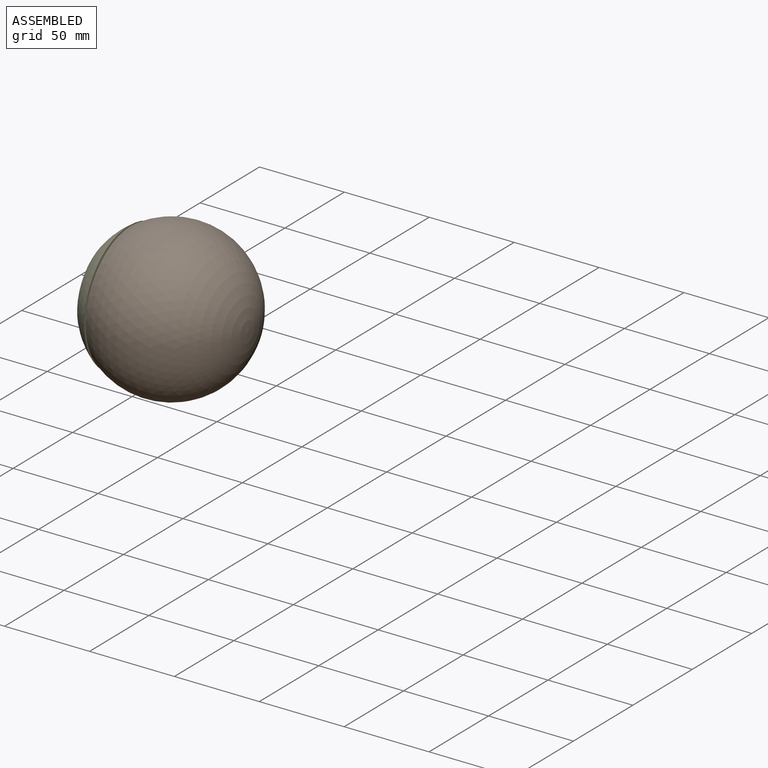
[diagram: assembled view]
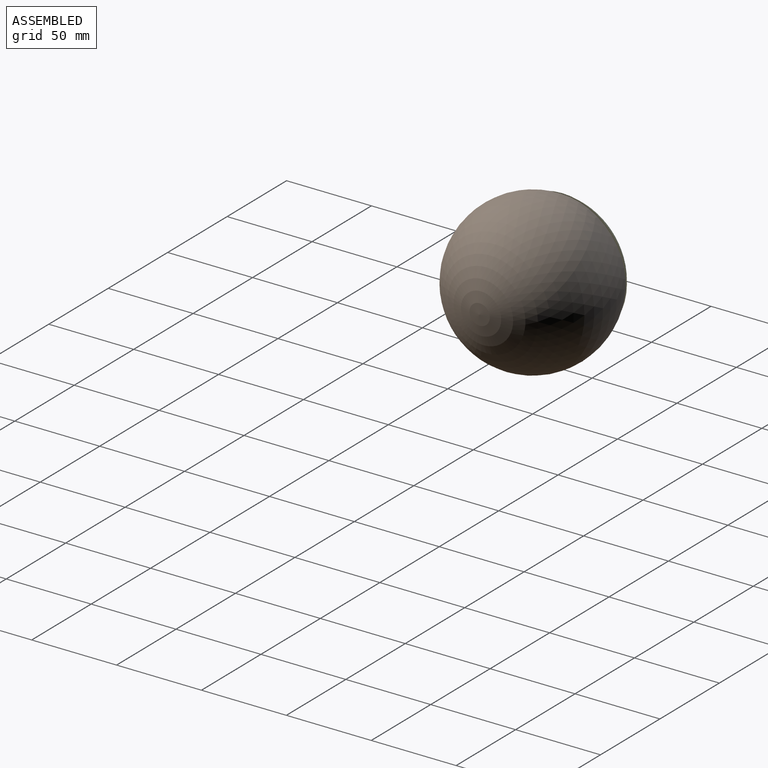
[diagram: assembled view, second angle]
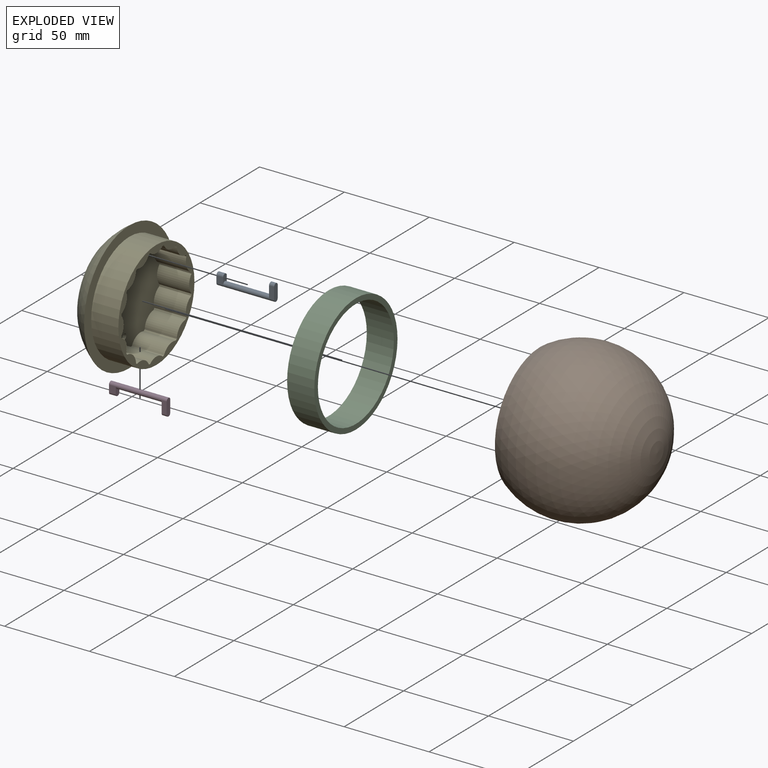
[diagram: exploded view]
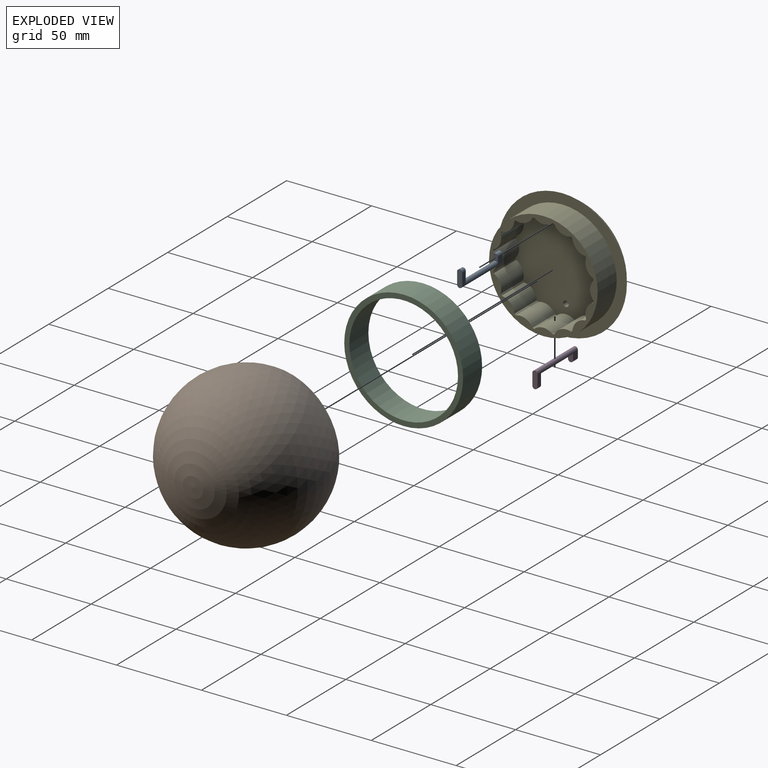
[diagram: exploded view, second angle]
ASSEMBLY  parts=5 mates=4
PART A: 11 faces, bbox 3x34x9.9 mm
  f0: plane 4x4mm, normal (-1,0,0), area 16mm2, adj f1,f3,f4,f5
  f1: cylinder r=1.5mm len=34mm, axis (0,1,0), area 287.5mm2, adj f0,f2,f4,f5,f6,f8,f9,f10
  f2: plane 4x4mm, normal (1,0,0), area 16mm2, adj f1,f3,f4,f5
  f3: cylinder r=1.5mm len=4mm, axis (0,1,0), area 18.8mm2, adj f0,f2,f4,f5
  f4: plane 7x3mm, normal (0,-1,0), area 19.1mm2, adj f0,f1,f2,f3
  f5: plane 5.5x3mm, normal (0,1,0), area 12mm2, adj f0,f1,f2,f3
  f6: plane 6.92x3mm, normal (-1,0,0), area 20.8mm2, adj f1,f7,f9,f10
  f7: cylinder r=1.5mm len=3mm, axis (0,-1,0), area 14.1mm2, adj f6,f8,f9,f10
  f8: plane 6.92x3mm, normal (1,0,0), area 20.8mm2, adj f1,f7,f9,f10
  f9: plane 9.92x3mm, normal (0,1,0), area 27.8mm2, adj f1,f6,f7,f8
  f10: plane 8.42x3mm, normal (0,-1,0), area 20.8mm2, adj f1,f6,f7,f8
PART B: 36 faces, bbox 69x90x90 mm
  f0: cylinder r=25mm len=49.4mm, axis (1,0,0), area 861.2mm2, adj f3,f6,f13,f15,f21,f23,f28,f31
  f1: cylinder r=25mm len=49.4mm, axis (1,0,0), area 861.2mm2, adj f2,f4,f6,f16,f18,f20,f29,f30
  f2: plane 41.75x11.18mm, normal (-1,0,0), area 102.6mm2, adj f1,f16,f17,f18
  f3: plane 41.75x11.18mm, normal (-1,0,0), area 102.6mm2, adj f0,f12,f13,f23
  f4: cylinder r=2.5mm len=6mm, axis (-1,0,0), area 74.1mm2, adj f1,f5,f30,f35
  f5: cylinder r=25.8mm len=9.62mm, axis (-1,0,0), area 65.8mm2, adj f4,f16,f30,f35
  f6: torus R=28mm, axis (1,0,0), area 772.5mm2, adj f0,f1,f7,f27
  f7: plane 70x70mm, normal (1,0,0), area 1385.4mm2, adj f6,f8
  f8: torus R=35mm, axis (1,0,0), area 1092.9mm2, adj f7,f9
  f9: cylinder r=38mm len=76mm, axis (1,0,0), area 2427.5mm2, adj f8,f10
  f10: torus R=38.2mm, axis (1,0,0), area 129.4mm2, adj f9,f11
  f11: sphere r=42.5mm, area 16223.2mm2, adj f10
  f12: cylinder r=27.25mm len=41.75mm, axis (-1,0,0), area 761mm2, adj f3,f13,f23,f27
  f13: plane 16x1.72mm, normal (0,-0.77,0.64), area 31.2mm2, adj f0,f3,f12,f14,f27,f31,f34
  f14: cylinder r=25.8mm len=9.62mm, axis (-1,0,0), area 65.8mm2, adj f13,f15,f31,f34
  f15: cylinder r=2.5mm len=6mm, axis (-1,0,0), area 74.1mm2, adj f0,f14,f31,f34
  f16: plane 16x1.72mm, normal (0,0.77,0.64), area 31.2mm2, adj f1,f2,f5,f17,f27,f30,f35
  f17: cylinder r=27.25mm len=41.75mm, axis (-1,0,0), area 761mm2, adj f2,f16,f18,f27
  f18: plane 16x1.72mm, normal (0,0.77,-0.64), area 31.2mm2, adj f1,f2,f17,f19,f27,f29,f33
  f19: cylinder r=25.8mm len=9.62mm, axis (-1,0,0), area 65.8mm2, adj f18,f20,f29,f33
  f20: cylinder r=2.5mm len=6mm, axis (-1,0,0), area 74.1mm2, adj f1,f19,f29,f33
  f21: cylinder r=2.5mm len=6mm, axis (-1,0,0), area 74.1mm2, adj f0,f22,f28,f32
  f22: cylinder r=25.8mm len=9.62mm, axis (-1,0,0), area 65.8mm2, adj f21,f23,f28,f32
  f23: plane 16x1.72mm, normal (0,-0.77,-0.64), area 31.2mm2, adj f0,f3,f12,f22,f27,f28,f32
  f24: sphere r=45mm, area 19509.3mm2, adj f25
  f25: plane 76.13x76.13mm, normal (-1,0,0), area 703.7mm2, adj f24,f26
  f26: cylinder r=35mm len=70mm, axis (1,0,0), area 3518.6mm2, adj f25,f27
  f27: plane 70x70mm, normal (-1,0,0), area 1679.8mm2, adj f6,f12,f13,f16,f17,f18,f23,f26
  f28: plane 13.77x10.08mm, normal (-1,0,0), area 28.2mm2, adj f0,f21,f22,f23
  f29: plane 13.77x10.08mm, normal (-1,0,0), area 28.2mm2, adj f1,f18,f19,f20
  f30: plane 13.77x10.08mm, normal (-1,0,0), area 28.2mm2, adj f1,f4,f5,f16
  f31: plane 13.77x10.08mm, normal (-1,0,0), area 28.2mm2, adj f0,f13,f14,f15
  f32: plane 13.77x10.08mm, normal (1,0,0), area 28.2mm2, adj f0,f21,f22,f23
  f33: plane 13.77x10.08mm, normal (1,0,0), area 28.2mm2, adj f1,f18,f19,f20
  f34: plane 13.77x10.08mm, normal (1,0,0), area 28.2mm2, adj f0,f13,f14,f15
  f35: plane 13.77x10.08mm, normal (1,0,0), area 28.2mm2, adj f1,f4,f5,f16
PART C: 4 faces, bbox 70x16x70 mm
  f0: cylinder r=32mm len=64mm, axis (0,1,0), area 3217mm2, adj f2,f3
  f1: cylinder r=35mm len=70mm, axis (0,1,0), area 3518.6mm2, adj f2,f3
  f2: plane 70x70mm, normal (0,-1,0), area 631.5mm2, adj f0,f1
  f3: plane 70x70mm, normal (0,1,0), area 631.5mm2, adj f0,f1
PART D: same geometry as A
PART E: 52 faces, bbox 26.9x76x76 mm
  f0: plane 56.57x56.57mm, normal (-1,0,0), area 2411.5mm2, adj f23,f40,f41,f42,f43,f45,f46,f47
  f1: cylinder r=1.65mm len=4mm, axis (-1,0,0), area 41.5mm2, adj f3,f49
  f2: cylinder r=1.65mm len=4mm, axis (-1,0,0), area 41.5mm2, adj f3,f44
  f3: plane 59.05x59.05mm, normal (1,0,0), area 2520mm2, adj f1,f2,f4,f5,f6,f7,f8,f9
  f4: cylinder r=30mm len=18.9mm, axis (-1,0,0), area 20.5mm2, adj f3,f20,f38,f39
  f5: cylinder r=30mm len=18.9mm, axis (-1,0,0), area 20.5mm2, adj f3,f20,f37,f38
  f6: cylinder r=30mm len=18.9mm, axis (-1,0,0), area 20.5mm2, adj f3,f20,f36,f37
  f7: cylinder r=30mm len=18.9mm, axis (-1,0,0), area 20.5mm2, adj f3,f20,f35,f36
  f8: cylinder r=30mm len=18.9mm, axis (-1,0,0), area 20.5mm2, adj f3,f20,f34,f35
  f9: cylinder r=30mm len=18.9mm, axis (-1,0,0), area 20.5mm2, adj f3,f20,f33,f34
  f10: cylinder r=30mm len=18.9mm, axis (-1,0,0), area 20.5mm2, adj f3,f20,f32,f33
  f11: cylinder r=30mm len=18.9mm, axis (-1,0,0), area 20.5mm2, adj f3,f20,f31,f32
  f12: cylinder r=30mm len=18.9mm, axis (-1,0,0), area 20.5mm2, adj f3,f20,f30,f31
  f13: cylinder r=30mm len=18.9mm, axis (-1,0,0), area 20.5mm2, adj f3,f20,f29,f30
  f14: cylinder r=30mm len=18.9mm, axis (-1,0,0), area 20.5mm2, adj f3,f20,f28,f29
  f15: cylinder r=30mm len=18.9mm, axis (-1,0,0), area 20.5mm2, adj f3,f20,f27,f28
  f16: cylinder r=30mm len=18.9mm, axis (-1,0,0), area 20.5mm2, adj f3,f20,f26,f27
  f17: cylinder r=30mm len=18.9mm, axis (-1,0,0), area 20.5mm2, adj f3,f20,f25,f26
  f18: cylinder r=30mm len=18.9mm, axis (-1,0,0), area 20.5mm2, adj f3,f20,f24,f25
  f19: cylinder r=30mm len=18.9mm, axis (-1,0,0), area 20.5mm2, adj f3,f20,f24,f39
  f20: plane 64x64mm, normal (1,0,0), area 679.9mm2, adj f4,f5,f6,f7,f8,f9,f10,f11
  f21: cylinder r=32mm len=64mm, axis (-1,0,0), area 3217mm2, adj f20,f22
  f22: plane 76x76mm, normal (1,0,0), area 1319.5mm2, adj f21,f23
  f23: sphere r=45mm, area 3080.8mm2, adj f0,f22
  f24: cylinder r=8mm len=18.9mm, axis (1,0,0), area 219.9mm2, adj f3,f18,f19,f20
  f25: cylinder r=8mm len=18.9mm, axis (1,0,0), area 219.9mm2, adj f3,f17,f18,f20
  f26: cylinder r=8mm len=18.9mm, axis (1,0,0), area 219.9mm2, adj f3,f16,f17,f20
  f27: cylinder r=8mm len=18.9mm, axis (1,0,0), area 219.9mm2, adj f3,f15,f16,f20
  f28: cylinder r=8mm len=18.9mm, axis (1,0,0), area 219.9mm2, adj f3,f14,f15,f20
  f29: cylinder r=8mm len=18.9mm, axis (1,0,0), area 219.9mm2, adj f3,f13,f14,f20
  f30: cylinder r=8mm len=18.9mm, axis (1,0,0), area 219.9mm2, adj f3,f12,f13,f20
  f31: cylinder r=8mm len=18.9mm, axis (1,0,0), area 219.9mm2, adj f3,f11,f12,f20
  f32: cylinder r=8mm len=18.9mm, axis (1,0,0), area 219.9mm2, adj f3,f10,f11,f20
  f33: cylinder r=8mm len=18.9mm, axis (1,0,0), area 219.9mm2, adj f3,f9,f10,f20
  f34: cylinder r=8mm len=18.9mm, axis (1,0,0), area 219.9mm2, adj f3,f8,f9,f20
  f35: cylinder r=8mm len=18.9mm, axis (1,0,0), area 219.9mm2, adj f3,f7,f8,f20
  f36: cylinder r=8mm len=18.9mm, axis (1,0,0), area 219.9mm2, adj f3,f6,f7,f20
  f37: cylinder r=8mm len=18.9mm, axis (1,0,0), area 219.9mm2, adj f3,f5,f6,f20
  f38: cylinder r=8mm len=18.9mm, axis (1,0,0), area 219.9mm2, adj f3,f4,f5,f20
  f39: cylinder r=8mm len=18.9mm, axis (1,0,0), area 219.9mm2, adj f3,f4,f19,f20
  f40: plane 7.5x4mm, normal (0,-1,0), area 30mm2, adj f0,f41,f43,f44
  f41: plane 7.5x4mm, normal (0,0,1), area 30mm2, adj f0,f40,f42,f44
  f42: plane 4x2.5mm, normal (0,1,0), area 10mm2, adj f0,f41,f44,f51
  f43: plane 4x2.5mm, normal (0,0,-1), area 10mm2, adj f0,f40,f44,f51
  f44: plane 7.5x7.5mm, normal (-1,0,0), area 42.3mm2, adj f2,f40,f41,f42,f43,f51
  f45: plane 4x2.5mm, normal (0,1,0), area 10mm2, adj f0,f46,f49,f50
  f46: plane 7.5x4mm, normal (0,0,-1), area 30mm2, adj f0,f45,f47,f49
  f47: plane 7.5x4mm, normal (0,-1,0), area 30mm2, adj f0,f46,f48,f49
  f48: plane 4x2.5mm, normal (0,0,1), area 10mm2, adj f0,f47,f49,f50
  f49: plane 7.5x7.5mm, normal (-1,0,0), area 42.3mm2, adj f1,f45,f46,f47,f48,f50
  f50: cylinder r=5mm len=5mm, axis (-1,0,0), area 31.4mm2, adj f0,f45,f48,f49
  f51: cylinder r=5mm len=5mm, axis (-1,0,0), area 31.4mm2, adj f0,f42,f43,f44
PLACE A rot(axis=(0,0,-1),90deg) t=(13.72,-12.5,67.55)mm
PLACE B t=(32.12,-12.5,45.55)mm
PLACE C rot(axis=(-0.58,0.58,0.58),120deg) t=(7.12,-12.5,45.55)mm
PLACE D rot(axis=(0.71,0.71,0),180deg) t=(13.72,-12.5,23.55)mm
PLACE E t=(-3.78,-12.5,45.55)mm
MATE fastened C.f1 <-> E.f4  axis (-1,0,0) through (7.12,-12.5,45.55)mm
MATE fastened A.f1 <-> E.f2  axis (1,0,0) through (0.22,-12.5,67.55)mm
MATE fastened D.f1 <-> E.f1  axis (1,0,0) through (0.22,-12.5,23.55)mm
MATE fastened E.f4 <-> B.f0  axis (1,0,0) through (23.12,-12.5,45.55)mm
